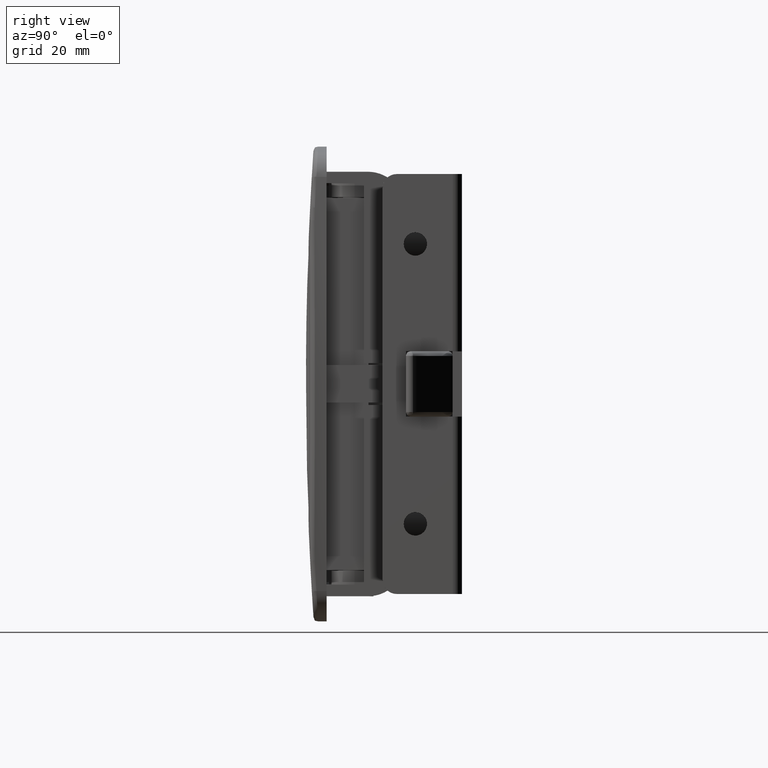
[diagram: clean part render]
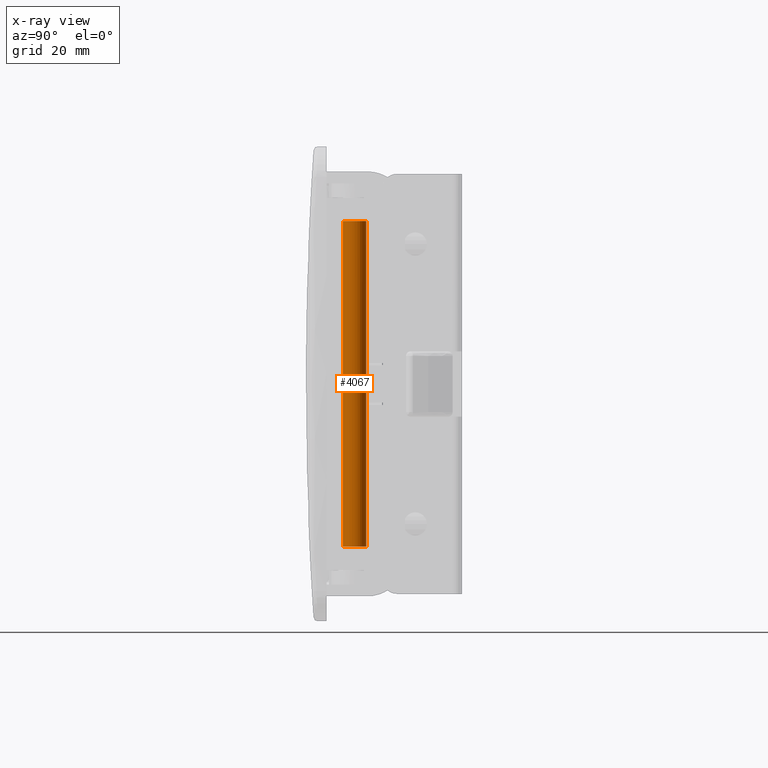
[diagram: x-ray — body ghosted, one internal face saturated and labeled with its STEP entity id]
A machine part, right view, then the same camera in x-ray: the body is ghosted and one INTERNAL B-rep face — a face not visible from any outside direction — is saturated and labeled: STEP entity #4067.
In plain terms, the highlighted face is a freeform B-spline surface patch.
Its self-contained STEP definition (entity closure, byte-faithful):
#3933=CARTESIAN_POINT('',(20.747726839250369,-21.216873877114551,36.645000000000003));
#3934=CARTESIAN_POINT('',(22.530852962135821,-19.464600716364924,36.645000000000003));
#3935=CARTESIAN_POINT('',(24.283126122885449,-21.247726839250369,36.645000000000003));
#3936=CARTESIAN_POINT('',(26.035399283635087,-23.030852962135825,36.645000000000003));
#3937=CARTESIAN_POINT('',(24.252273160749631,-24.783126122885449,36.645000000000003));
#3938=CARTESIAN_POINT('',(22.469147037864179,-26.535399283635080,36.645000000000003));
#3939=CARTESIAN_POINT('',(20.716873877114551,-24.752273160749631,36.645000000000003));
#3940=CARTESIAN_POINT('',(20.747726839250369,-21.216873877114551,-36.688625000000009));
#3941=CARTESIAN_POINT('',(22.530852962135821,-19.464600716364924,-36.688625000000016));
#3942=CARTESIAN_POINT('',(24.283126122885449,-21.247726839250369,-36.688625000000009));
#3943=CARTESIAN_POINT('',(26.035399283635087,-23.030852962135825,-36.688625000000016));
#3944=CARTESIAN_POINT('',(24.252273160749631,-24.783126122885449,-36.688625000000009));
#3945=CARTESIAN_POINT('',(22.469147037864179,-26.535399283635080,-36.688625000000016));
#3946=CARTESIAN_POINT('',(20.716873877114551,-24.752273160749631,-36.688625000000009));
#3954=(BOUNDED_SURFACE()B_SPLINE_SURFACE(2,1,((#3933,#3940),(#3934,#3941),(#3935,#3942),(#3936,#3943),(#3937,#3944),(#3938,#3945),(#3939,#3946)),.UNSPECIFIED.,.F.,.F.,.U.)B_SPLINE_SURFACE_WITH_KNOTS((3,2,2,3),(2,2),(0.0,4.142135623730949,8.284271247461899,12.426406871192849),(0.0,73.333625000000012),.UNSPECIFIED.)GEOMETRIC_REPRESENTATION_ITEM()RATIONAL_B_SPLINE_SURFACE(((1.0,1.0),(0.707106781186548,0.707106781186548),(1.0,1.0),(0.707106781186548,0.707106781186548),(1.0,1.0),(0.707106781186548,0.707106781186548),(1.0,1.0)))REPRESENTATION_ITEM('')SURFACE());
#3955=CARTESIAN_POINT('',(20.747727384748679,-21.216874609259051,-34.900000000001157));
#3956=VERTEX_POINT('',#3955);
#3957=CARTESIAN_POINT('',(22.500003618738539,-20.500000000002618,-34.899999999999999));
#3958=VERTEX_POINT('',#3957);
#3959=CARTESIAN_POINT('',(20.747727384748679,-21.216874609259051,-34.900000000001157));
#3960=CARTESIAN_POINT('',(20.963964747871191,-21.004012288736710,-34.900000000000993));
#3961=CARTESIAN_POINT('',(21.509289711993041,-20.635850962765598,-34.900000000000723));
#3962=CARTESIAN_POINT('',(22.156092115199339,-20.499547271529540,-34.900000000000212));
#3963=CARTESIAN_POINT('',(22.500003618738539,-20.500000000002618,-34.899999999999999));
#3964=B_SPLINE_CURVE_WITH_KNOTS('',3,(#3959,#3960,#3961,#3962,#3963),.UNSPECIFIED.,.F.,.U.,(4,1,4),(0.000000041396317,0.910194860353610,1.941729832181501),.UNSPECIFIED.);
#3965=EDGE_CURVE('',#3956,#3958,#3964,.T.);
#3966=ORIENTED_EDGE('',*,*,#3965,.F.);
#3967=CARTESIAN_POINT('',(20.747726122905949,-21.216873312861050,34.899999999999999));
#3968=VERTEX_POINT('',#3967);
#3969=CARTESIAN_POINT('',(20.747726122905949,-21.216873312861050,34.899999999999999));
#3970=CARTESIAN_POINT('',(20.747727384748679,-21.216874609259051,-34.900000000001157));
#3971=QUASI_UNIFORM_CURVE('',1,(#3969,#3970),.UNSPECIFIED.,.F.,.U.);
#3972=EDGE_CURVE('',#3968,#3956,#3971,.T.);
#3973=ORIENTED_EDGE('',*,*,#3972,.F.);
#3974=CARTESIAN_POINT('',(22.499996381261450,-20.500000000002618,34.899999999999999));
#3975=VERTEX_POINT('',#3974);
#3976=CARTESIAN_POINT('',(22.499996381261450,-20.500000000002618,34.899999999999999));
#3977=CARTESIAN_POINT('',(22.196574541452890,-20.499750852087740,34.899999999999963));
#3978=CARTESIAN_POINT('',(21.549543621533779,-20.619321190924140,34.900000000000112));
#3979=CARTESIAN_POINT('',(20.992728866433751,-20.975542160359421,34.899999999999963));
#3980=CARTESIAN_POINT('',(20.747726122905949,-21.216873312861050,34.899999999999999));
#3981=B_SPLINE_CURVE_WITH_KNOTS('',3,(#3976,#3977,#3978,#3979,#3980),.UNSPECIFIED.,.F.,.U.,(4,1,4),(0.000000041395980,0.910191792709237,1.941723288076551),.UNSPECIFIED.);
#3982=EDGE_CURVE('',#3975,#3968,#3981,.T.);
#3983=ORIENTED_EDGE('',*,*,#3982,.F.);
#3984=CARTESIAN_POINT('',(25.0,-23.0,34.899999999999999));
#3985=VERTEX_POINT('',#3984);
#3986=CARTESIAN_POINT('',(25.0,-23.0,34.899999999999999));
#3987=CARTESIAN_POINT('',(25.000038119263131,-22.795473132837550,34.900000000000027));
#3988=CARTESIAN_POINT('',(24.947035223177991,-22.365959460213180,34.899999999999991));
#3989=CARTESIAN_POINT('',(24.724782878571300,-21.810195070781571,34.899999999999991));
#3990=CARTESIAN_POINT('',(24.357914585289350,-21.289260292750772,34.900000000000126));
#3991=CARTESIAN_POINT('',(23.919585780758279,-20.911162598803561,34.899999999999650));
#3992=CARTESIAN_POINT('',(23.277040937250870,-20.587751149557839,34.900000000000553));
#3993=CARTESIAN_POINT('',(22.806840691443561,-20.499704775840328,34.899999999999707));
#3994=CARTESIAN_POINT('',(22.499996381261450,-20.500000000002618,34.899999999999999));
#3995=B_SPLINE_CURVE_WITH_KNOTS('',3,(#3986,#3987,#3988,#3989,#3990,#3991,#3992,#3993,#3994),.UNSPECIFIED.,.F.,.U.,(4,1,1,1,1,1,4),(0.000000134172472,0.613593227099499,1.288590115959729,1.779496861262236,2.515787540923781,3.006680485720762,3.927091400472499),.UNSPECIFIED.);
#3996=EDGE_CURVE('',#3985,#3975,#3995,.T.);
#3997=ORIENTED_EDGE('',*,*,#3996,.F.);
#3998=CARTESIAN_POINT('',(22.500003618738521,-25.499999999997382,34.899999999999991));
#3999=VERTEX_POINT('',#3998);
#4000=CARTESIAN_POINT('',(22.500003618738521,-25.499999999997382,34.899999999999991));
#4001=CARTESIAN_POINT('',(22.704524565453841,-25.500027073853609,34.899999999999970));
#4002=CARTESIAN_POINT('',(23.174973512323760,-25.442045786135850,34.900000000000027));
#4003=CARTESIAN_POINT('',(23.765166050955049,-25.189097527413121,34.899999999999963));
#4004=CARTESIAN_POINT('',(24.234961000258782,-24.822273834012091,34.900000000000013));
#4005=CARTESIAN_POINT('',(24.557119853003929,-24.448793985187599,34.899999999999942));
#4006=CARTESIAN_POINT('',(24.891559266843799,-23.858736853297131,34.900000000000162));
#4007=CARTESIAN_POINT('',(25.000449601478831,-23.347791826449299,34.899999999999871));
#4008=CARTESIAN_POINT('',(25.0,-23.0,34.899999999999999));
#4009=B_SPLINE_CURVE_WITH_KNOTS('',3,(#4000,#4001,#4002,#4003,#4004,#4005,#4006,#4007,#4008),.UNSPECIFIED.,.F.,.U.,(4,1,1,1,1,1,4),(0.000000139127193,0.613592594259049,1.411299771469881,1.902199104130411,2.393051886730002,2.883953687787791,3.927087321209031),.UNSPECIFIED.);
#4010=EDGE_CURVE('',#3999,#3985,#4009,.T.);
#4011=ORIENTED_EDGE('',*,*,#4010,.F.);
#4012=CARTESIAN_POINT('',(20.716874608166979,-24.752272614140100,34.899999999999991));
#4013=VERTEX_POINT('',#4012);
#4014=CARTESIAN_POINT('',(20.716874608166979,-24.752272614140100,34.899999999999991));
#4015=CARTESIAN_POINT('',(20.962995255095020,-25.003430602109901,34.899999999999913));
#4016=CARTESIAN_POINT('',(21.528233408326400,-25.375132788256860,34.900000000000063));
#4017=CARTESIAN_POINT('',(22.189752896528390,-25.500284547578730,34.899999999999949));
#4018=CARTESIAN_POINT('',(22.500003618738521,-25.499999999997382,34.899999999999991));
#4019=B_SPLINE_CURVE_WITH_KNOTS('',3,(#4014,#4015,#4016,#4017,#4018),.UNSPECIFIED.,.F.,.U.,(4,1,4),(0.000000046207298,1.054716175862088,1.985366093338392),.UNSPECIFIED.);
#4020=EDGE_CURVE('',#4013,#3999,#4019,.T.);
#4021=ORIENTED_EDGE('',*,*,#4020,.F.);
#4022=CARTESIAN_POINT('',(20.716873313902720,-24.752273878154121,-34.899999999998862));
#4023=VERTEX_POINT('',#4022);
#4024=CARTESIAN_POINT('',(20.716874608166979,-24.752272614140100,34.899999999999991));
#4025=CARTESIAN_POINT('',(20.716873313902720,-24.752273878154121,-34.899999999998862));
#4026=QUASI_UNIFORM_CURVE('',1,(#4024,#4025),.UNSPECIFIED.,.F.,.U.);
#4027=EDGE_CURVE('',#4013,#4023,#4026,.T.);
#4028=ORIENTED_EDGE('',*,*,#4027,.T.);
#4029=CARTESIAN_POINT('',(22.499996381261479,-25.499999999997382,-34.899999999999991));
#4030=VERTEX_POINT('',#4029);
#4031=CARTESIAN_POINT('',(22.499996381261479,-25.499999999997382,-34.899999999999991));
#4032=CARTESIAN_POINT('',(22.189750692570168,-25.500286784285951,-34.899999999999800));
#4033=CARTESIAN_POINT('',(21.528223351249409,-25.375120222457369,-34.899999999999380));
#4034=CARTESIAN_POINT('',(20.962987373742550,-25.003448340133549,-34.899999999999011));
#4035=CARTESIAN_POINT('',(20.716873313902720,-24.752273878154121,-34.899999999998862));
#4036=B_SPLINE_CURVE_WITH_KNOTS('',3,(#4031,#4032,#4033,#4034,#4035),.UNSPECIFIED.,.F.,.U.,(4,1,4),(0.000000046206238,0.930646910154389,1.985359579249659),.UNSPECIFIED.);
#4037=EDGE_CURVE('',#4030,#4023,#4036,.T.);
#4038=ORIENTED_EDGE('',*,*,#4037,.F.);
#4039=CARTESIAN_POINT('',(25.0,-23.0,-34.899999999999999));
#4040=VERTEX_POINT('',#4039);
#4041=CARTESIAN_POINT('',(25.0,-23.0,-34.899999999999999));
#4042=CARTESIAN_POINT('',(25.000038179281511,-23.204526899556178,-34.900000000000048));
#4043=CARTESIAN_POINT('',(24.947023465254610,-23.634029810761909,-34.899999999999963));
#4044=CARTESIAN_POINT('',(24.678906484563282,-24.304858089331731,-34.900000000000013));
#4045=CARTESIAN_POINT('',(24.244425016461399,-24.834343047611931,-34.900000000000020));
#4046=CARTESIAN_POINT('',(23.740174983668471,-25.189207426097720,-34.899999999999977));
#4047=CARTESIAN_POINT('',(23.195319658402411,-25.430814462858471,-34.900000000000020));
#4048=CARTESIAN_POINT('',(22.765903010243619,-25.500135001634561,-34.899999999999963));
#4049=CARTESIAN_POINT('',(22.499996381261479,-25.499999999997382,-34.899999999999991));
#4050=B_SPLINE_CURVE_WITH_KNOTS('',3,(#4041,#4042,#4043,#4044,#4045,#4046,#4047,#4048,#4049),.UNSPECIFIED.,.F.,.U.,(4,1,1,1,1,1,4),(0.000000134171402,0.613593227098856,1.288590115959405,2.147593772519485,2.638500501595807,3.129409878355547,3.927091400472481),.UNSPECIFIED.);
#4051=EDGE_CURVE('',#4040,#4030,#4050,.T.);
#4052=ORIENTED_EDGE('',*,*,#4051,.F.);
#4053=CARTESIAN_POINT('',(22.500003618738539,-20.500000000002618,-34.899999999999999));
#4054=CARTESIAN_POINT('',(22.847796779642412,-20.499573568391860,-34.900000000000063));
#4055=CARTESIAN_POINT('',(23.358728638111749,-20.608432229884048,-34.899999999999892));
#4056=CARTESIAN_POINT('',(23.984582178163500,-20.963118943743972,-34.900000000000183));
#4057=CARTESIAN_POINT('',(24.381566507509760,-21.322913100419129,-34.899999999999693));
#4058=CARTESIAN_POINT('',(24.689236874665170,-21.759795846172739,-34.900000000000453));
#4059=CARTESIAN_POINT('',(24.930791918981029,-22.304681465209981,-34.899999999999672));
#4060=CARTESIAN_POINT('',(25.000158347519619,-22.734088381836930,-34.900000000000077));
#4061=CARTESIAN_POINT('',(25.0,-23.0,-34.899999999999999));
#4062=B_SPLINE_CURVE_WITH_KNOTS('',3,(#4053,#4054,#4055,#4056,#4057,#4058,#4059,#4060,#4061),.UNSPECIFIED.,.F.,.U.,(4,1,1,1,1,1,4),(0.000000139128639,1.043134465339926,1.534037290062974,2.147591544051603,2.638497760802828,3.129406625720346,3.927087321208969),.UNSPECIFIED.);
#4063=EDGE_CURVE('',#3958,#4040,#4062,.T.);
#4064=ORIENTED_EDGE('',*,*,#4063,.F.);
#4065=EDGE_LOOP('',(#3966,#3973,#3983,#3997,#4011,#4021,#4028,#4038,#4052,#4064));
#4066=FACE_OUTER_BOUND('',#4065,.T.);
#4067=ADVANCED_FACE('',(#4066),#3954,.T.);